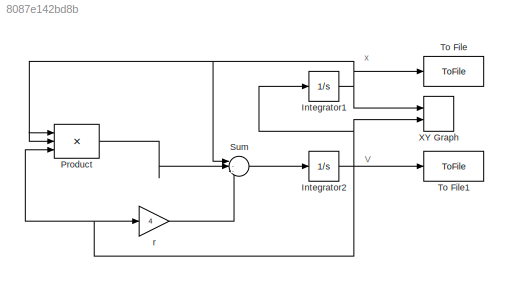
MODEL slx_8087e142bd8b
KIND model
CONFIG AbsTol = auto
CONFIG EnableMultiTasking = on
CONFIG FixedStep = auto
CONFIG MaxStep = auto
CONFIG MinStep = auto
CONFIG RelTol = 1e-3
CONFIG SampleTimeConstraint = Unconstrained
CONFIG SolverName = ode45
CONFIG StartTime = 0.0
CONFIG StopTime = 400
BLOCK [Integrator] Integrator1
  InitialCondition = 0.2
  Ports = [1, 1]
BLOCK [Integrator] Integrator2
  InitialCondition = 0.1
  Ports = [1, 1]
BLOCK [Product] Product
  Inputs = 3
  OutDataTypeStr = Inherit: Same as first input
  Ports = [3, 1]
  SaturateOnIntegerOverflow = on
BLOCK [Sum] Sum
  Inputs = |--+
  Ports = [3, 1]
  SaturateOnIntegerOverflow = on
BLOCK [ToFile] To File
  Filename = x.mat
  MatrixName = x
  Ports = [1]
  SampleTime = 0.001
BLOCK [ToFile] To File1
  Filename = v.mat
  MatrixName = v
  Ports = [1]
  SampleTime = 0.001
BLOCK [Record] XY Graph
  CompatibilityTag = XY
  FileSettingsInternal = {"entries":[{"content":{"excelSettings":{"content":{},"type":"Streamout.ExcelSettings"}},"type":"Streamout.FileSettingStorage","uuid":"a55beb16-261f-430d-98d1-ffd28f0215ee"}],"packageUris":["http://schema.mathworks.com/mf0/streamout_blocks/R2020a"],"version":"1.0"}
  Layout = [1 1]
  Ports = [2]
  SignalsInternal = {"entries":[{"content":{"signals":[{"content":{"blockPath":["h14/XY Graph"],"channel":[],"dimensions":[1],"domain":"h14/XY Graph","lineColor":"#a2142f","plots":[1],"port":1,"sid":[],"signalID":116995,"signalName":"XY Graph:1"},"type":"RecordBlkView.Signal","uuid":"b1a125aa-9a51-4877-94ac-8bcd8d53c9ea"},{"content":{"blockPath":["h14/XY Graph"],"channel":[],"dimensions":[1],"domain":"h14/XY Graph","...<+349ch>
  VisualizationBindings = {"xyplotplugin":{"info":[{"series":[{"bindingParametersList":[{"parameter":"X-Axis","signalID":116995,"signalName":"XY Graph:1"},{"parameter":"Y-Axis","signalID":116998,"signalName":"XY Graph:2"}],"seriesID":37356}],"subplotID":1}]}}
  st = 0.05
BLOCK [Gain] r
  Gain = 4
  OutDataTypeStr = Inherit: Same as input
  ParamDataTypeStr = Inherit: Same as input
  SaturateOnIntegerOverflow = on
ANNOTATION (root): V
ANNOTATION (root): x
NET Integrator1:1 -> Product:1, Product:2, Sum:1, To File:1, XY Graph:1
NET Integrator2:1 -> Integrator1:1, Product:3, To File1:1, XY Graph:2, r:1
LINE Product:1 -> Sum:2
LINE Sum:1 -> Integrator2:1
LINE r:1 -> Sum:3
note: NET lines group one-source signal fan-out (src -> all destinations, sorted); 1:1 wires keep LINE
